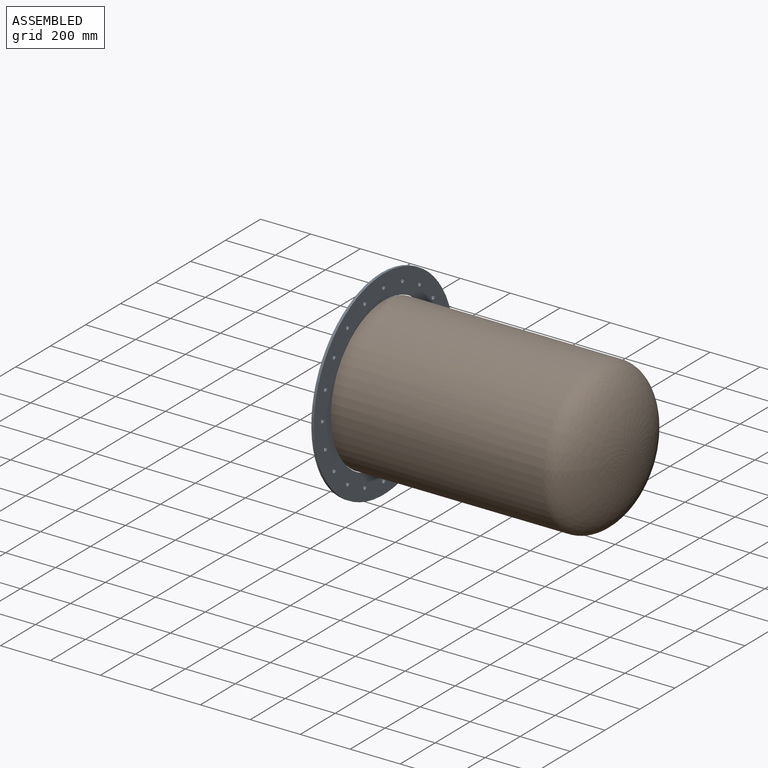
[diagram: assembled view]
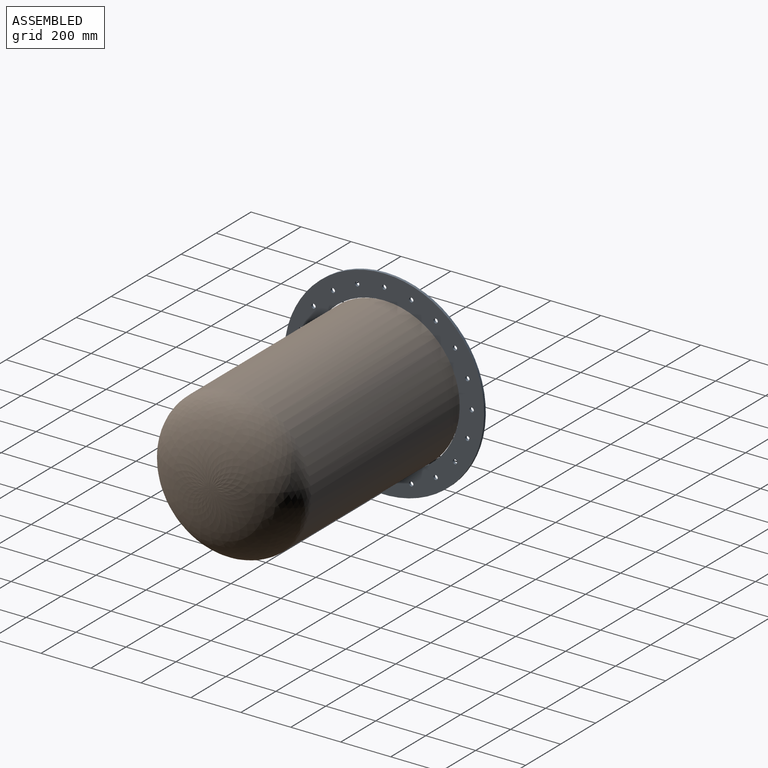
[diagram: assembled view, second angle]
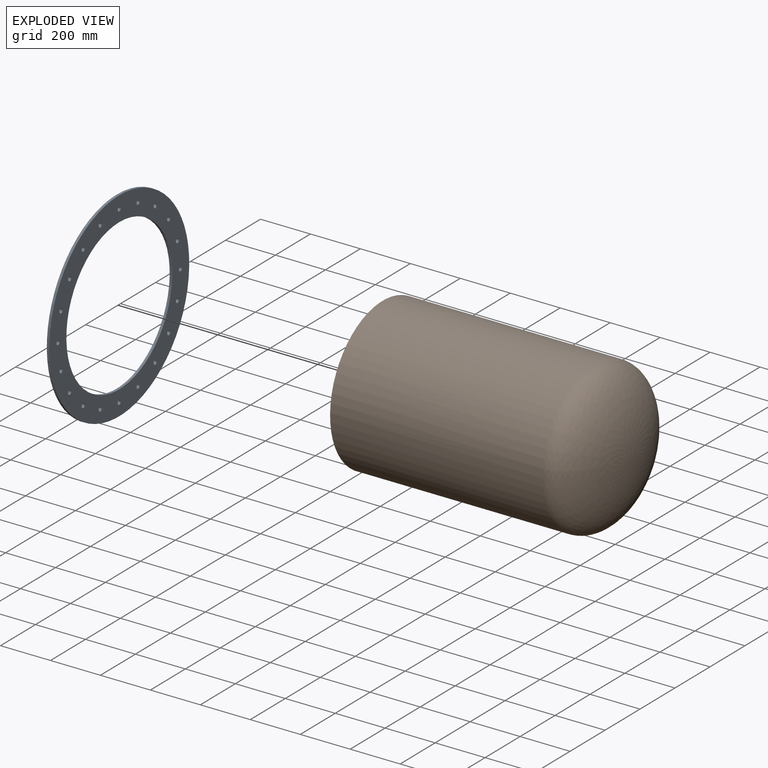
[diagram: exploded view]
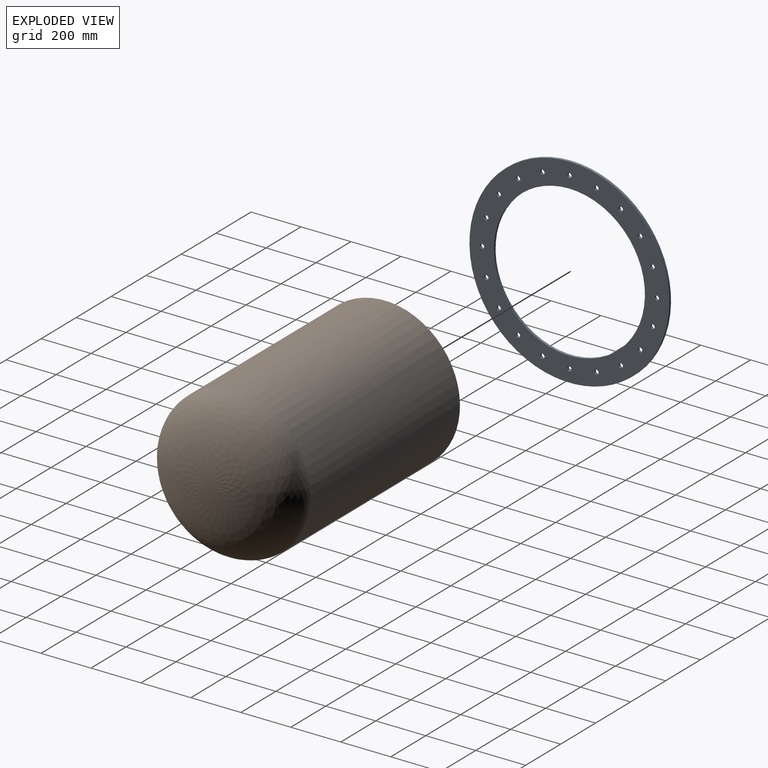
[diagram: exploded view, second angle]
ASSEMBLY  parts=2 mates=2
PART A: 24 faces, bbox 10x800x800 mm
  f0: plane 800x800mm, normal (-1,0,0), area 210368.9mm2, adj f1,f3,f4,f5,f6,f7,f8,f9
  f1: cylinder r=302.5mm len=605mm, axis (1,0,0), area 19006.6mm2, adj f0,f2
  f2: plane 800x800mm, normal (1,0,0), area 210368.9mm2, adj f1,f3,f4,f5,f6,f7,f8,f9
  f3: cylinder r=400mm len=800mm, axis (1,0,0), area 25132.7mm2, adj f0,f2
  f4: cylinder r=8.75mm len=17.5mm, axis (-1,0,0), area 549.8mm2, adj f0,f2
  f5: cylinder r=8.75mm len=17.5mm, axis (-1,0,0), area 549.8mm2, adj f0,f2
  f6: cylinder r=8.75mm len=17.5mm, axis (-1,0,0), area 549.8mm2, adj f0,f2
  f7: cylinder r=8.75mm len=17.5mm, axis (-1,0,0), area 549.8mm2, adj f0,f2
  f8: cylinder r=8.75mm len=17.5mm, axis (-1,0,0), area 549.8mm2, adj f0,f2
  f9: cylinder r=8.75mm len=17.5mm, axis (-1,0,0), area 549.8mm2, adj f0,f2
  f10: cylinder r=8.75mm len=17.5mm, axis (-1,0,0), area 549.8mm2, adj f0,f2
  f11: cylinder r=8.75mm len=17.5mm, axis (-1,0,0), area 549.8mm2, adj f0,f2
  f12: cylinder r=8.75mm len=17.5mm, axis (-1,0,0), area 549.8mm2, adj f0,f2
  f13: cylinder r=8.75mm len=17.5mm, axis (-1,0,0), area 549.8mm2, adj f0,f2
  f14: cylinder r=8.75mm len=17.5mm, axis (-1,0,0), area 549.8mm2, adj f0,f2
  f15: cylinder r=8.75mm len=17.5mm, axis (-1,0,0), area 549.8mm2, adj f0,f2
  f16: cylinder r=8.75mm len=17.5mm, axis (-1,0,0), area 549.8mm2, adj f0,f2
  f17: cylinder r=8.75mm len=17.5mm, axis (-1,0,0), area 549.8mm2, adj f0,f2
  f18: cylinder r=8.75mm len=17.5mm, axis (-1,0,0), area 549.8mm2, adj f0,f2
  f19: cylinder r=8.75mm len=17.5mm, axis (-1,0,0), area 549.8mm2, adj f0,f2
  f20: cylinder r=8.75mm len=17.5mm, axis (-1,0,0), area 549.8mm2, adj f0,f2
  f21: cylinder r=8.75mm len=17.5mm, axis (-1,0,0), area 549.8mm2, adj f0,f2
  f22: cylinder r=8.75mm len=17.5mm, axis (-1,0,0), area 549.8mm2, adj f0,f2
  f23: cylinder r=8.75mm len=17.5mm, axis (-1,0,0), area 549.8mm2, adj f0,f2
PART B: 5 faces, bbox 1000x600x600 mm
  f0: plane 600x600mm, normal (-1,0,0), area 4692.8mm2, adj f2,f4
  f1: revolved ~600x600mm, area 390234.7mm2, adj f2
  f2: cylinder r=300mm len=850mm, axis (1,0,0), area 1602212.3mm2, adj f0,f1
  f3: revolved ~595x595mm, area 382219.6mm2, adj f4
  f4: cylinder r=297.5mm len=850mm, axis (1,0,0), area 1588860.5mm2, adj f0,f3
PLACE A rot(axis=(0,1,0),180deg) t=(-1015.55,42.55,205.18)mm
PLACE B t=(-1020.55,42.55,205.18)mm
MATE cylindrical B.f2 <-> A.f1  axis (1,0,0) through (-595.55,42.55,205.18)mm
MATE parallel A.f1 <-> B.f2  axis (-1,0,0) through (-1025.55,42.55,205.18)mm
